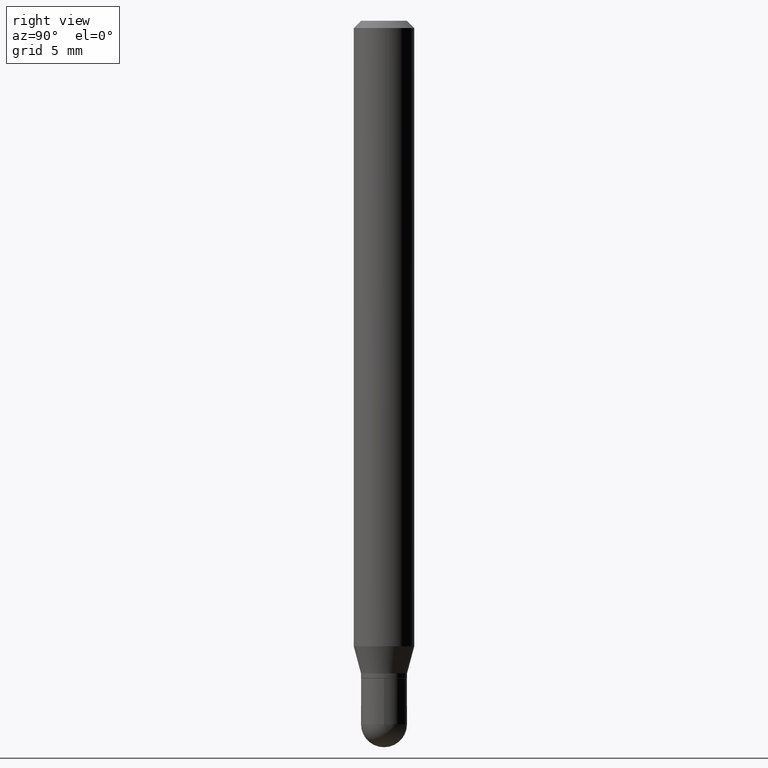
[diagram: clean part render]
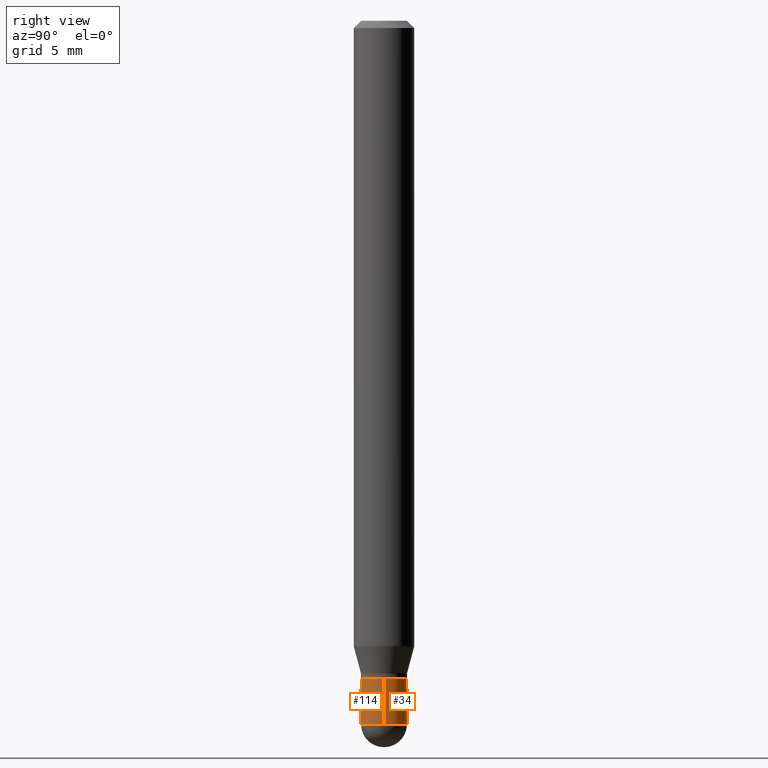
[diagram: same view with one multi-face feature highlighted, each face labeled with its STEP entity id]
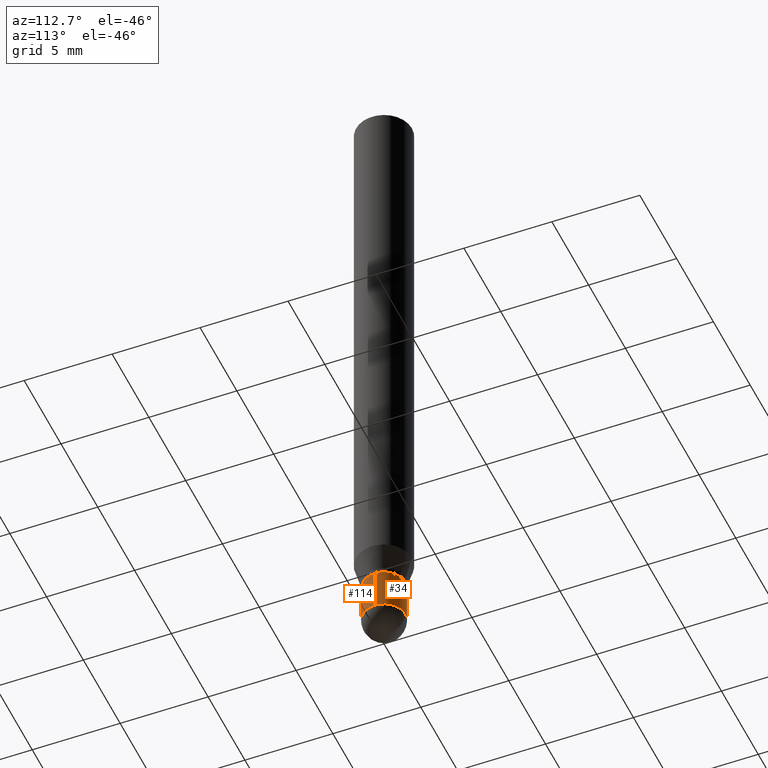
[diagram: same view with one multi-face feature highlighted, each face labeled with its STEP entity id]
A machine part, right view. The highlighted faces form ONE feature: a constant-radius fillet chain: 2 tangent blend faces with common blend radius 1.2065 mm. The faces share edges in the B-rep.
A second angle (auxiliary view) of the same feature is appended — it is thin or edge-on in the first view.
Their STEP definitions:
[1] entity #34 (Cylinder):
#12 = CARTESIAN_POINT ( 'NONE',  ( 0.04749999999999999362, -5.071376644669668238E-15, -1.357500000000000151 ) ) ;
#24 = AXIS2_PLACEMENT_3D ( 'NONE', #256, #107, #265 ) ;
#29 = ORIENTED_EDGE ( 'NONE', *, *, #145, .T. ) ;
#34 = ADVANCED_FACE ( 'NONE', ( #390 ), #41, .T. ) ;
#35 = ORIENTED_EDGE ( 'NONE', *, *, #191, .T. ) ;
#41 = CYLINDRICAL_SURFACE ( 'NONE', #418, 0.04750000000000000749 ) ;
#60 = CARTESIAN_POINT ( 'NONE',  ( -0.04750000000000000749, 3.375077994860476415E-16, -2.336494167871080260E-30 ) ) ;
#65 = CIRCLE ( 'NONE', #221, 0.04750000000000000749 ) ;
#76 = EDGE_CURVE ( 'NONE', #315, #169, #450, .T. ) ;
#91 = ORIENTED_EDGE ( 'NONE', *, *, #160, .F. ) ;
#95 = ORIENTED_EDGE ( 'NONE', *, *, #258, .T. ) ;
#96 = CIRCLE ( 'NONE', #24, 0.04749999999999999362 ) ;
#100 = LINE ( 'NONE', #60, #105 ) ;
#102 = CARTESIAN_POINT ( 'NONE',  ( 0.04750000000000000749, -3.316907271900977082E-16, 2.316183968503069432E-30 ) ) ;
#105 = VECTOR ( 'NONE', #366, 39.37007874015748143 ) ;
#106 = DIRECTION ( 'NONE',  ( -2.445468806185136597E-29, 3.491481338843145583E-15, 1.000000000000000000 ) ) ;
#107 = DIRECTION ( 'NONE',  ( -2.445468806185136597E-29, 3.491481338843145583E-15, 1.000000000000000000 ) ) ;
#125 = DIRECTION ( 'NONE',  ( 1.000000000000000000, -6.982962677686266711E-15, 4.876176775795934672E-29 ) ) ;
#126 = AXIS2_PLACEMENT_3D ( 'NONE', #190, #464, #161 ) ;
#145 = EDGE_CURVE ( 'NONE', #471, #356, #100, .T. ) ;
#148 = CARTESIAN_POINT ( 'NONE',  ( 0.04750000000000000749, -5.237222008264718177E-15, -1.452500000000000346 ) ) ;
#154 = CIRCLE ( 'NONE', #126, 0.04750000000000000749 ) ;
#157 = VECTOR ( 'NONE', #217, 39.37007874015748143 ) ;
#160 = EDGE_CURVE ( 'NONE', #169, #356, #96, .T. ) ;
#161 = DIRECTION ( 'NONE',  ( 1.000000000000000000, -6.982962677686260400E-15, 0.000000000000000000 ) ) ;
#165 = VERTEX_POINT ( 'NONE', #372 ) ;
#169 = VERTEX_POINT ( 'NONE', #12 ) ;
#190 = CARTESIAN_POINT ( 'NONE',  ( 3.552043440983912297E-29, -5.071376644669670605E-15, -1.452500000000000346 ) ) ;
#191 = EDGE_CURVE ( 'NONE', #165, #471, #154, .T. ) ;
#201 = CARTESIAN_POINT ( 'NONE',  ( -0.04749999999999999362, -4.568023481588573961E-15, -1.357500000000000151 ) ) ;
#217 = DIRECTION ( 'NONE',  ( -2.445468806185136877E-29, 3.491481338843145188E-15, 1.000000000000000000 ) ) ;
#221 = AXIS2_PLACEMENT_3D ( 'NONE', #335, #106, #257 ) ;
#256 = CARTESIAN_POINT ( 'NONE',  ( 3.319723904396323737E-29, -4.739685917479570727E-15, -1.357500000000000151 ) ) ;
#257 = DIRECTION ( 'NONE',  ( 1.000000000000000000, -6.982962677686260400E-15, 0.000000000000000000 ) ) ;
#258 = EDGE_CURVE ( 'NONE', #315, #165, #65, .T. ) ;
#265 = DIRECTION ( 'NONE',  ( 1.000000000000000000, -6.982962677686261977E-15, 0.000000000000000000 ) ) ;
#267 = CARTESIAN_POINT ( 'NONE',  ( -0.04750000000000000749, -4.568023481588573961E-15, -1.452500000000000346 ) ) ;
#276 = ORIENTED_EDGE ( 'NONE', *, *, #76, .F. ) ;
#315 = VERTEX_POINT ( 'NONE', #148 ) ;
#316 = DIRECTION ( 'NONE',  ( -2.445468806185136597E-29, 3.491481338843145583E-15, 1.000000000000000000 ) ) ;
#335 = CARTESIAN_POINT ( 'NONE',  ( 3.552043440983912297E-29, -5.071376644669670605E-15, -1.452500000000000346 ) ) ;
#356 = VERTEX_POINT ( 'NONE', #201 ) ;
#366 = DIRECTION ( 'NONE',  ( -2.445468806185136877E-29, 3.491481338843145188E-15, 1.000000000000000000 ) ) ;
#372 = CARTESIAN_POINT ( 'NONE',  ( 3.375077994860830417E-16, 0.04749999999999491435, -1.452500000000000790 ) ) ;
#390 = FACE_OUTER_BOUND ( 'NONE', #436, .T. ) ;
#418 = AXIS2_PLACEMENT_3D ( 'NONE', #511, #316, #125 ) ;
#436 = EDGE_LOOP ( 'NONE', ( #35, #29, #91, #276, #95 ) ) ;
#450 = LINE ( 'NONE', #102, #157 ) ;
#464 = DIRECTION ( 'NONE',  ( -2.445468806185136597E-29, 3.491481338843145583E-15, 1.000000000000000000 ) ) ;
#471 = VERTEX_POINT ( 'NONE', #267 ) ;
#511 = CARTESIAN_POINT ( 'NONE',  ( 0.000000000000000000, 0.000000000000000000, 0.000000000000000000 ) ) ;
[2] entity #114 (Cylinder):
#12 = CARTESIAN_POINT ( 'NONE',  ( 0.04749999999999999362, -5.071376644669668238E-15, -1.357500000000000151 ) ) ;
#21 = EDGE_CURVE ( 'NONE', #471, #207, #196, .T. ) ;
#40 = ORIENTED_EDGE ( 'NONE', *, *, #21, .T. ) ;
#60 = CARTESIAN_POINT ( 'NONE',  ( -0.04750000000000000749, 3.375077994860476415E-16, -2.336494167871080260E-30 ) ) ;
#68 = EDGE_CURVE ( 'NONE', #356, #169, #389, .T. ) ;
#70 = CYLINDRICAL_SURFACE ( 'NONE', #321, 0.04750000000000000749 ) ;
#76 = EDGE_CURVE ( 'NONE', #315, #169, #450, .T. ) ;
#100 = LINE ( 'NONE', #60, #105 ) ;
#102 = CARTESIAN_POINT ( 'NONE',  ( 0.04750000000000000749, -3.316907271900977082E-16, 2.316183968503069432E-30 ) ) ;
#105 = VECTOR ( 'NONE', #366, 39.37007874015748143 ) ;
#114 = ADVANCED_FACE ( 'NONE', ( #337 ), #70, .T. ) ;
#145 = EDGE_CURVE ( 'NONE', #471, #356, #100, .T. ) ;
#146 = CARTESIAN_POINT ( 'NONE',  ( 3.319723904396323737E-29, -4.739685917479570727E-15, -1.357500000000000151 ) ) ;
#148 = CARTESIAN_POINT ( 'NONE',  ( 0.04750000000000000749, -5.237222008264718177E-15, -1.452500000000000346 ) ) ;
#157 = VECTOR ( 'NONE', #217, 39.37007874015748143 ) ;
#166 = DIRECTION ( 'NONE',  ( -2.445468806185136597E-29, 3.491481338843145583E-15, 1.000000000000000000 ) ) ;
#169 = VERTEX_POINT ( 'NONE', #12 ) ;
#172 = ORIENTED_EDGE ( 'NONE', *, *, #489, .T. ) ;
#196 = CIRCLE ( 'NONE', #234, 0.04750000000000000749 ) ;
#200 = ORIENTED_EDGE ( 'NONE', *, *, #145, .F. ) ;
#201 = CARTESIAN_POINT ( 'NONE',  ( -0.04749999999999999362, -4.568023481588573961E-15, -1.357500000000000151 ) ) ;
#207 = VERTEX_POINT ( 'NONE', #310 ) ;
#217 = DIRECTION ( 'NONE',  ( -2.445468806185136877E-29, 3.491481338843145188E-15, 1.000000000000000000 ) ) ;
#234 = AXIS2_PLACEMENT_3D ( 'NONE', #281, #166, #354 ) ;
#267 = CARTESIAN_POINT ( 'NONE',  ( -0.04750000000000000749, -4.568023481588573961E-15, -1.452500000000000346 ) ) ;
#269 = CIRCLE ( 'NONE', #299, 0.04750000000000000749 ) ;
#270 = DIRECTION ( 'NONE',  ( -2.445468806185136597E-29, 3.491481338843145583E-15, 1.000000000000000000 ) ) ;
#281 = CARTESIAN_POINT ( 'NONE',  ( 3.552043440983912297E-29, -5.071376644669670605E-15, -1.452500000000000346 ) ) ;
#283 = ORIENTED_EDGE ( 'NONE', *, *, #68, .F. ) ;
#295 = DIRECTION ( 'NONE',  ( 1.000000000000000000, -6.982962677686266711E-15, 4.876176775795934672E-29 ) ) ;
#298 = DIRECTION ( 'NONE',  ( -2.445468806185136597E-29, 3.491481338843145583E-15, 1.000000000000000000 ) ) ;
#299 = AXIS2_PLACEMENT_3D ( 'NONE', #459, #270, #419 ) ;
#310 = CARTESIAN_POINT ( 'NONE',  ( -3.316907271900621108E-16, -0.04750000000000507983, -1.452500000000000124 ) ) ;
#315 = VERTEX_POINT ( 'NONE', #148 ) ;
#321 = AXIS2_PLACEMENT_3D ( 'NONE', #328, #411, #295 ) ;
#328 = CARTESIAN_POINT ( 'NONE',  ( 0.000000000000000000, 0.000000000000000000, 0.000000000000000000 ) ) ;
#337 = FACE_OUTER_BOUND ( 'NONE', #363, .T. ) ;
#339 = AXIS2_PLACEMENT_3D ( 'NONE', #146, #298, #452 ) ;
#354 = DIRECTION ( 'NONE',  ( 1.000000000000000000, -6.982962677686260400E-15, 0.000000000000000000 ) ) ;
#356 = VERTEX_POINT ( 'NONE', #201 ) ;
#363 = EDGE_LOOP ( 'NONE', ( #200, #40, #172, #484, #283 ) ) ;
#366 = DIRECTION ( 'NONE',  ( -2.445468806185136877E-29, 3.491481338843145188E-15, 1.000000000000000000 ) ) ;
#389 = CIRCLE ( 'NONE', #339, 0.04749999999999999362 ) ;
#411 = DIRECTION ( 'NONE',  ( -2.445468806185136597E-29, 3.491481338843145583E-15, 1.000000000000000000 ) ) ;
#419 = DIRECTION ( 'NONE',  ( 1.000000000000000000, -6.982962677686260400E-15, 0.000000000000000000 ) ) ;
#450 = LINE ( 'NONE', #102, #157 ) ;
#452 = DIRECTION ( 'NONE',  ( 1.000000000000000000, -6.982962677686261977E-15, 0.000000000000000000 ) ) ;
#459 = CARTESIAN_POINT ( 'NONE',  ( 3.552043440983912297E-29, -5.071376644669670605E-15, -1.452500000000000346 ) ) ;
#471 = VERTEX_POINT ( 'NONE', #267 ) ;
#484 = ORIENTED_EDGE ( 'NONE', *, *, #76, .T. ) ;
#489 = EDGE_CURVE ( 'NONE', #207, #315, #269, .T. ) ;